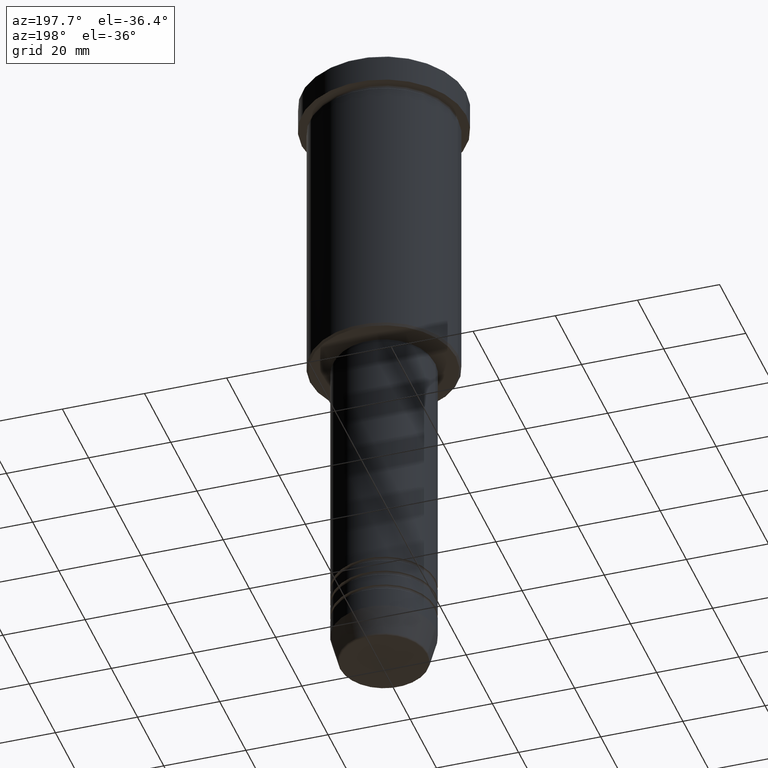
[diagram: clean part render]
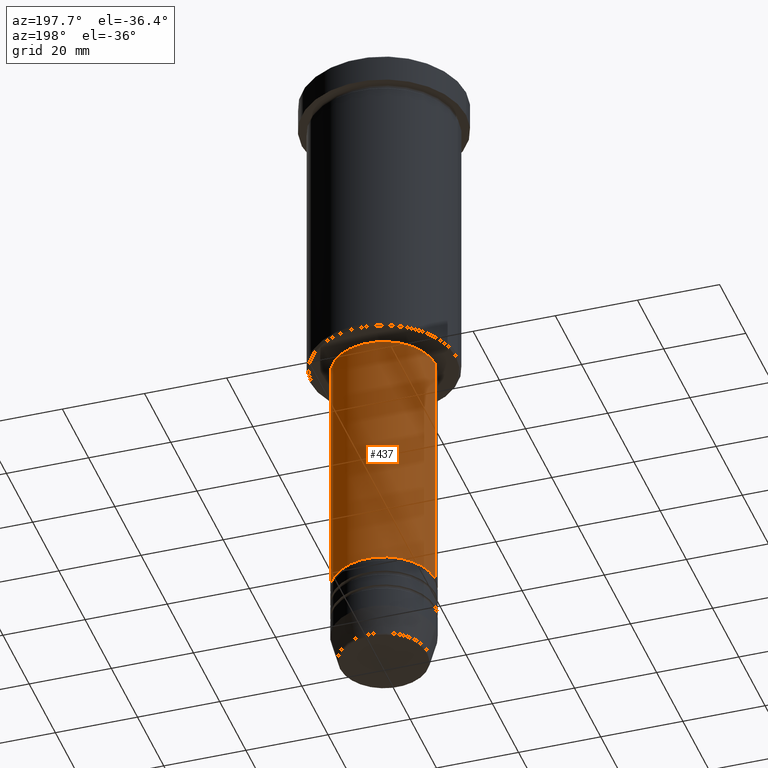
[diagram: same view with one face highlighted and labeled with its STEP entity id]
A machine part, auxiliary view. The second image highlights one B-rep face of the part: STEP entity #437.
In plain terms, the highlighted cylindrical surface (partial cylindrical patch) has radius 12.5 mm, axis along (-0, -0, 1).
Its self-contained STEP definition (entity closure, byte-faithful):
#7 = EDGE_CURVE ( 'NONE', #1012, #294, #61, .T. ) ;
#28 = CARTESIAN_POINT ( 'NONE',  ( -12.50000000000000000, 1.530808498934191521E-15, -138.9999999999999716 ) ) ;
#50 = CYLINDRICAL_SURFACE ( 'NONE', #99, 12.50000000000000000 ) ;
#61 = CIRCLE ( 'NONE', #114, 12.50000000000000000 ) ;
#75 = ORIENTED_EDGE ( 'NONE', *, *, #1165, .T. ) ;
#86 = VERTEX_POINT ( 'NONE', #1172 ) ;
#99 = AXIS2_PLACEMENT_3D ( 'NONE', #496, #404, #588 ) ;
#114 = AXIS2_PLACEMENT_3D ( 'NONE', #1173, #355, #1102 ) ;
#134 = FACE_OUTER_BOUND ( 'NONE', #190, .T. ) ;
#169 = DIRECTION ( 'NONE',  ( -0.000000000000000000, -0.000000000000000000, 1.000000000000000000 ) ) ;
#190 = EDGE_LOOP ( 'NONE', ( #1013, #75, #229, #874 ) ) ;
#215 = DIRECTION ( 'NONE',  ( 1.000000000000000000, 0.000000000000000000, 0.000000000000000000 ) ) ;
#217 = CARTESIAN_POINT ( 'NONE',  ( 12.50000000000000000, 0.000000000000000000, -77.00000000000004263 ) ) ;
#229 = ORIENTED_EDGE ( 'NONE', *, *, #512, .F. ) ;
#294 = VERTEX_POINT ( 'NONE', #28 ) ;
#303 = DIRECTION ( 'NONE',  ( -0.000000000000000000, -0.000000000000000000, 1.000000000000000000 ) ) ;
#318 = CARTESIAN_POINT ( 'NONE',  ( -12.50000000000000000, 1.530808498934191521E-15, 0.000000000000000000 ) ) ;
#355 = DIRECTION ( 'NONE',  ( -0.000000000000000000, -0.000000000000000000, 1.000000000000000000 ) ) ;
#404 = DIRECTION ( 'NONE',  ( -0.000000000000000000, -0.000000000000000000, 1.000000000000000000 ) ) ;
#420 = VECTOR ( 'NONE', #169, 1000.000000000000000 ) ;
#437 = ADVANCED_FACE ( 'NONE', ( #134 ), #50, .T. ) ;
#474 = CARTESIAN_POINT ( 'NONE',  ( 0.000000000000000000, 0.000000000000000000, -77.00000000000004263 ) ) ;
#496 = CARTESIAN_POINT ( 'NONE',  ( 0.000000000000000000, 0.000000000000000000, 0.000000000000000000 ) ) ;
#512 = EDGE_CURVE ( 'NONE', #758, #86, #522, .T. ) ;
#522 = CIRCLE ( 'NONE', #1147, 12.50000000000000000 ) ;
#588 = DIRECTION ( 'NONE',  ( 1.000000000000000000, 0.000000000000000000, 0.000000000000000000 ) ) ;
#669 = DIRECTION ( 'NONE',  ( -0.000000000000000000, -0.000000000000000000, 1.000000000000000000 ) ) ;
#718 = VECTOR ( 'NONE', #669, 1000.000000000000000 ) ;
#758 = VERTEX_POINT ( 'NONE', #217 ) ;
#801 = EDGE_CURVE ( 'NONE', #1012, #758, #1023, .T. ) ;
#874 = ORIENTED_EDGE ( 'NONE', *, *, #801, .F. ) ;
#1010 = LINE ( 'NONE', #318, #718 ) ;
#1012 = VERTEX_POINT ( 'NONE', #1056 ) ;
#1013 = ORIENTED_EDGE ( 'NONE', *, *, #7, .T. ) ;
#1023 = LINE ( 'NONE', #1148, #420 ) ;
#1056 = CARTESIAN_POINT ( 'NONE',  ( 12.50000000000000000, 0.000000000000000000, -138.9999999999999716 ) ) ;
#1102 = DIRECTION ( 'NONE',  ( 1.000000000000000000, 0.000000000000000000, 0.000000000000000000 ) ) ;
#1147 = AXIS2_PLACEMENT_3D ( 'NONE', #474, #303, #215 ) ;
#1148 = CARTESIAN_POINT ( 'NONE',  ( 12.50000000000000000, 0.000000000000000000, 0.000000000000000000 ) ) ;
#1165 = EDGE_CURVE ( 'NONE', #294, #86, #1010, .T. ) ;
#1172 = CARTESIAN_POINT ( 'NONE',  ( -12.50000000000000000, 1.530808498934191521E-15, -77.00000000000004263 ) ) ;
#1173 = CARTESIAN_POINT ( 'NONE',  ( 0.000000000000000000, 0.000000000000000000, -138.9999999999999716 ) ) ;